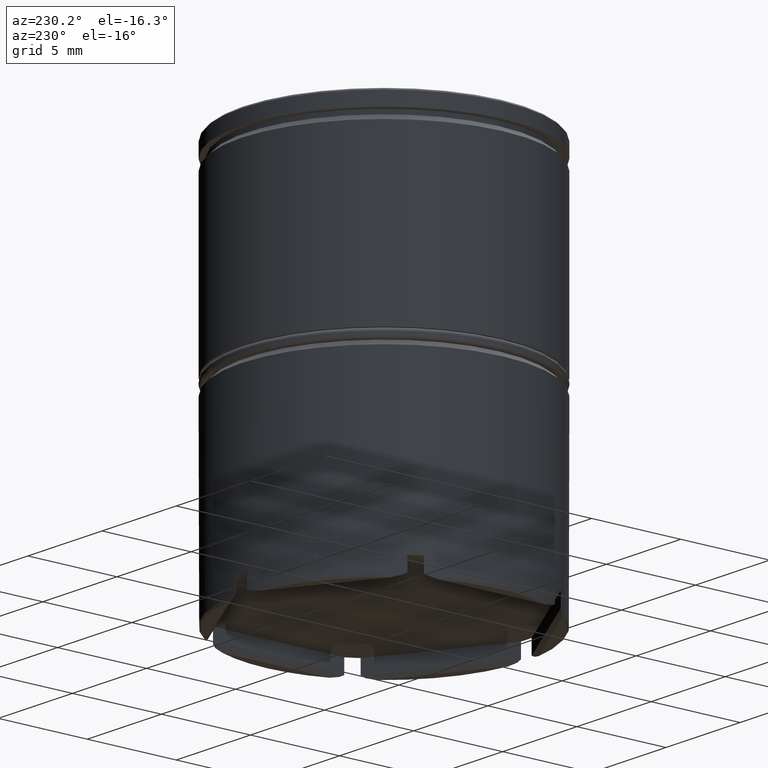
[diagram: clean part render]
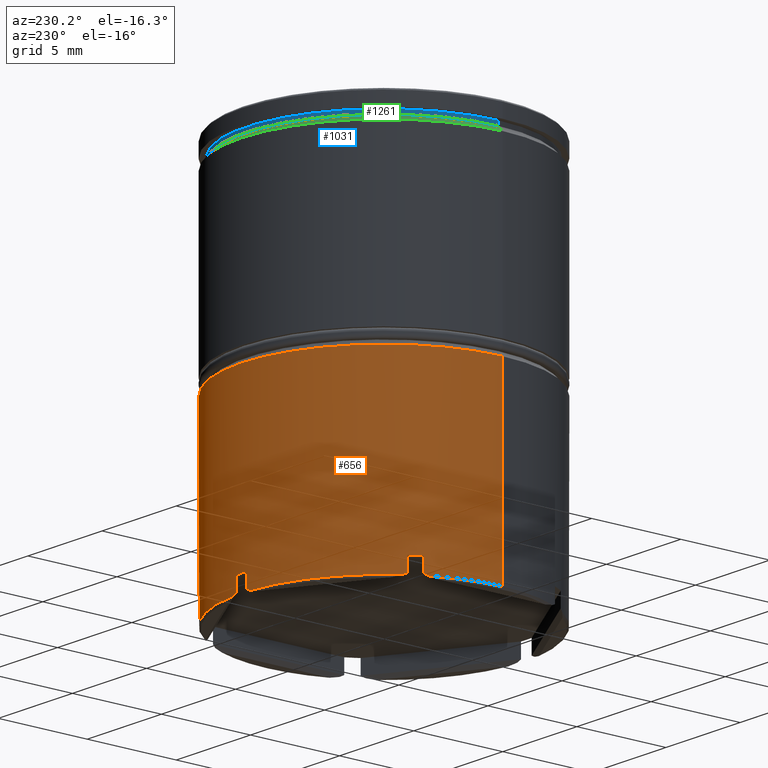
[diagram: same view with three faces highlighted in distinct colors, each labeled with its STEP entity id]
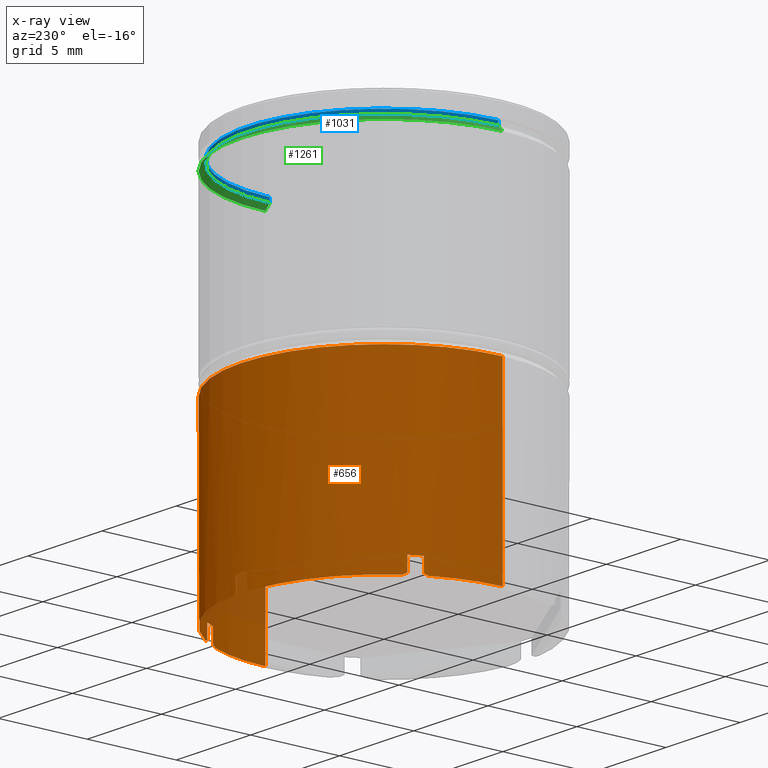
[diagram: x-ray of the same camera — body ghosted, the three highlighted faces saturated]
A machine part, auxiliary view with three faces highlighted in distinct colors.
The next image is the same camera in x-ray (body ghosted, the three faces saturated) — at least one of them is partly hidden behind the body in this view.
Their STEP definitions:

[orange] entity #656 — the highlighted cylindrical surface (partial cylindrical patch) has radius 8 mm, axis along (-0, -0, 1).
#6 = EDGE_LOOP ( 'NONE', ( #1310, #514, #572, #141, #913, #1617, #726, #905, #921, #1592, #1544, #1538, #636, #705, #1390, #1230, #870, #1582, #696, #283, #1303, #1383 ) ) ;
#17 = LINE ( 'NONE', #520, #479 ) ;
#25 = VERTEX_POINT ( 'NONE', #893 ) ;
#27 = CARTESIAN_POINT ( 'NONE',  ( 0.000000000000000000, 0.000000000000000000, -21.90000000000000213 ) ) ;
#32 = CIRCLE ( 'NONE', #140, 8.000000000000000000 ) ;
#43 = DIRECTION ( 'NONE',  ( -1.000000000000000000, 0.000000000000000000, 0.000000000000000000 ) ) ;
#49 = DIRECTION ( 'NONE',  ( 0.000000000000000000, 0.000000000000000000, -1.000000000000000000 ) ) ;
#55 = VECTOR ( 'NONE', #1283, 1000.000000000000000 ) ;
#57 = CARTESIAN_POINT ( 'NONE',  ( -0.5800662258917000935, 7.978942484664226065, -21.90000000000000213 ) ) ;
#73 = VERTEX_POINT ( 'NONE', #1314 ) ;
#75 = CARTESIAN_POINT ( 'NONE',  ( -7.200000000000001066, 3.487119154832536871, -21.90000000000000213 ) ) ;
#106 = LINE ( 'NONE', #1036, #978 ) ;
#107 = VECTOR ( 'NONE', #1601, 1000.000000000000000 ) ;
#114 = VERTEX_POINT ( 'NONE', #184 ) ;
#118 = CARTESIAN_POINT ( 'NONE',  ( -0.3574305019310984322, 7.992011225986190404, 0.000000000000000000 ) ) ;
#120 = DIRECTION ( 'NONE',  ( -1.000000000000000000, 3.552713678800500929E-15, 0.000000000000000000 ) ) ;
#122 = EDGE_CURVE ( 'NONE', #360, #980, #131, .T. ) ;
#131 =( BOUNDED_CURVE ( )  B_SPLINE_CURVE ( 3, ( #1191, #1198, #1569, #57 ),
 .UNSPECIFIED., .F., .T. ) 
 B_SPLINE_CURVE_WITH_KNOTS ( ( 4, 4 ),
 ( 2.662687568714985353, 2.690565841793531199 ),
 .UNSPECIFIED. ) 
 CURVE ( )  GEOMETRIC_REPRESENTATION_ITEM ( )  RATIONAL_B_SPLINE_CURVE ( ( 1.000000000000000000, 0.9999352345395148278, 0.9999352345395148278, 1.000000000000000000 ) ) 
 REPRESENTATION_ITEM ( '' )  );
#140 = AXIS2_PLACEMENT_3D ( 'NONE', #1438, #1208, #1571 ) ;
#141 = ORIENTED_EDGE ( 'NONE', *, *, #574, .F. ) ;
#150 = EDGE_CURVE ( 'NONE', #154, #1038, #936, .T. ) ;
#153 = CARTESIAN_POINT ( 'NONE',  ( 7.100000000000005862, 3.686461718233341678, 0.000000000000000000 ) ) ;
#154 = VERTEX_POINT ( 'NONE', #1444 ) ;
#174 = CARTESIAN_POINT ( 'NONE',  ( -8.000000000000000000, 9.797174393178825657E-16, -21.90000000000000213 ) ) ;
#184 = CARTESIAN_POINT ( 'NONE',  ( 6.619933774108291757, 4.491823329831700740, -21.90000000000000213 ) ) ;
#193 = VECTOR ( 'NONE', #979, 1000.000000000000000 ) ;
#194 = CARTESIAN_POINT ( 'NONE',  ( -6.742569498068905709, 4.305549507752851390, -21.80000000000000782 ) ) ;
#200 = CARTESIAN_POINT ( 'NONE',  ( 0.5059174455343885546, 7.984333074113772355, -21.86759399722602026 ) ) ;
#240 = CIRCLE ( 'NONE', #1165, 8.000000000000000000 ) ;
#251 = CARTESIAN_POINT ( 'NONE',  ( 0.000000000000000000, 0.000000000000000000, -11.54999999999999893 ) ) ;
#283 = ORIENTED_EDGE ( 'NONE', *, *, #1020, .T. ) ;
#290 = CARTESIAN_POINT ( 'NONE',  ( 0.3574305019310944909, 7.992011225986190404, 0.000000000000000000 ) ) ;
#316 = CARTESIAN_POINT ( 'NONE',  ( 6.742569498068909262, 4.305549507752845173, -21.80000000000000071 ) ) ;
#324 = CARTESIAN_POINT ( 'NONE',  ( 6.661676551691631865, 4.430303897107399358, -21.86759399722602382 ) ) ;
#325 = EDGE_CURVE ( 'NONE', #759, #1101, #1000, .T. ) ;
#330 = CARTESIAN_POINT ( 'NONE',  ( -7.100000000000005862, 3.686461718233341678, -21.80000000000000782 ) ) ;
#341 = CIRCLE ( 'NONE', #1188, 8.000000000000000000 ) ;
#343 = CARTESIAN_POINT ( 'NONE',  ( -6.619933774108297975, 4.491823329831691858, -21.90000000000000213 ) ) ;
#350 = LINE ( 'NONE', #1532, #107 ) ;
#359 = DIRECTION ( 'NONE',  ( -1.000000000000000000, 1.154631945610162960E-14, 0.000000000000000000 ) ) ;
#360 = VERTEX_POINT ( 'NONE', #1427 ) ;
#366 = AXIS2_PLACEMENT_3D ( 'NONE', #1017, #888, #1382 ) ;
#367 = CIRCLE ( 'NONE', #1297, 8.000000000000000000 ) ;
#380 = EDGE_CURVE ( 'NONE', #1355, #773, #341, .T. ) ;
#419 = VERTEX_POINT ( 'NONE', #194 ) ;
#443 = AXIS2_PLACEMENT_3D ( 'NONE', #649, #1039, #891 ) ;
#452 = CIRCLE ( 'NONE', #1452, 8.000000000000000000 ) ;
#476 = EDGE_CURVE ( 'NONE', #952, #881, #624, .T. ) ;
#479 = VECTOR ( 'NONE', #1410, 1000.000000000000000 ) ;
#490 = CARTESIAN_POINT ( 'NONE',  ( 0.5800662258917101965, 7.978942484664227841, -21.90000000000000213 ) ) ;
#492 = FACE_OUTER_BOUND ( 'NONE', #6, .T. ) ;
#514 = ORIENTED_EDGE ( 'NONE', *, *, #706, .T. ) ;
#516 = VERTEX_POINT ( 'NONE', #699 ) ;
#518 = CARTESIAN_POINT ( 'NONE',  ( 0.000000000000000000, 0.000000000000000000, -21.90000000000000213 ) ) ;
#520 = CARTESIAN_POINT ( 'NONE',  ( 6.742569498068909262, 4.305549507752845173, 0.000000000000000000 ) ) ;
#523 = EDGE_CURVE ( 'NONE', #1001, #73, #1521, .T. ) ;
#543 = VERTEX_POINT ( 'NONE', #1212 ) ;
#572 = ORIENTED_EDGE ( 'NONE', *, *, #1131, .T. ) ;
#574 = EDGE_CURVE ( 'NONE', #806, #25, #350, .T. ) ;
#586 = CARTESIAN_POINT ( 'NONE',  ( -7.100000000000005862, 3.686461718233341678, 0.000000000000000000 ) ) ;
#591 = CARTESIAN_POINT ( 'NONE',  ( -8.000000000000000000, 9.797174393178825657E-16, -11.54999999999999893 ) ) ;
#602 = CARTESIAN_POINT ( 'NONE',  ( -0.5800662258917000935, 7.978942484664226065, -21.90000000000000213 ) ) ;
#609 = VECTOR ( 'NONE', #49, 1000.000000000000000 ) ;
#618 = DIRECTION ( 'NONE',  ( -0.000000000000000000, -0.000000000000000000, 1.000000000000000000 ) ) ;
#624 =( BOUNDED_CURVE ( )  B_SPLINE_CURVE ( 3, ( #1180, #941, #1442, #1335 ),
 .UNSPECIFIED., .F., .T. ) 
 B_SPLINE_CURVE_WITH_KNOTS ( ( 4, 4 ),
 ( 3.592619465386055477, 3.620497738464601767 ),
 .UNSPECIFIED. ) 
 CURVE ( )  GEOMETRIC_REPRESENTATION_ITEM ( )  RATIONAL_B_SPLINE_CURVE ( ( 1.000000000000000000, 0.9999352345395148278, 0.9999352345395148278, 1.000000000000000000 ) ) 
 REPRESENTATION_ITEM ( '' )  );
#629 = VERTEX_POINT ( 'NONE', #343 ) ;
#636 = ORIENTED_EDGE ( 'NONE', *, *, #1244, .F. ) ;
#649 = CARTESIAN_POINT ( 'NONE',  ( 0.000000000000000000, 0.000000000000000000, -20.99999999999999645 ) ) ;
#656 = ADVANCED_FACE ( 'NONE', ( #492 ), #1609, .T. ) ;
#678 = LINE ( 'NONE', #290, #609 ) ;
#696 = ORIENTED_EDGE ( 'NONE', *, *, #1507, .F. ) ;
#699 = CARTESIAN_POINT ( 'NONE',  ( 6.742569498068909262, 4.305549507752845173, -21.80000000000000071 ) ) ;
#703 = CARTESIAN_POINT ( 'NONE',  ( 7.100000000000005862, 3.686461718233341678, -21.80000000000000782 ) ) ;
#705 = ORIENTED_EDGE ( 'NONE', *, *, #1586, .T. ) ;
#706 = EDGE_CURVE ( 'NONE', #773, #956, #106, .T. ) ;
#719 = CARTESIAN_POINT ( 'NONE',  ( -0.3574305019310927700, 7.992011225986188627, -20.99999999999999645 ) ) ;
#721 = CARTESIAN_POINT ( 'NONE',  ( -6.619933774108297975, 4.491823329831691858, -21.90000000000000213 ) ) ;
#722 = DIRECTION ( 'NONE',  ( 1.000000000000000000, 0.000000000000000000, 0.000000000000000000 ) ) ;
#726 = ORIENTED_EDGE ( 'NONE', *, *, #1164, .F. ) ;
#753 = DIRECTION ( 'NONE',  ( 0.000000000000000000, 0.000000000000000000, -1.000000000000000000 ) ) ;
#759 = VERTEX_POINT ( 'NONE', #799 ) ;
#773 = VERTEX_POINT ( 'NONE', #174 ) ;
#776 = DIRECTION ( 'NONE',  ( -1.000000000000000000, 2.664535259100375697E-15, 0.000000000000000000 ) ) ;
#797 = LINE ( 'NONE', #153, #55 ) ;
#799 = CARTESIAN_POINT ( 'NONE',  ( 7.100000000000005862, 3.686461718233341678, -20.99999999999999645 ) ) ;
#806 = VERTEX_POINT ( 'NONE', #1161 ) ;
#826 = CARTESIAN_POINT ( 'NONE',  ( 0.5800662258917101965, 7.978942484664227841, -21.90000000000000213 ) ) ;
#836 = CARTESIAN_POINT ( 'NONE',  ( 6.619933774108291757, 4.491823329831700740, -21.90000000000000213 ) ) ;
#838 = CARTESIAN_POINT ( 'NONE',  ( 0.000000000000000000, 0.000000000000000000, 0.000000000000000000 ) ) ;
#848 =( BOUNDED_CURVE ( )  B_SPLINE_CURVE ( 3, ( #721, #1599, #1469, #854 ),
 .UNSPECIFIED., .F., .T. ) 
 B_SPLINE_CURVE_WITH_KNOTS ( ( 4, 4 ),
 ( 3.592619465386055033, 3.620497738464601323 ),
 .UNSPECIFIED. ) 
 CURVE ( )  GEOMETRIC_REPRESENTATION_ITEM ( )  RATIONAL_B_SPLINE_CURVE ( ( 1.000000000000000000, 0.9999352345395148278, 0.9999352345395148278, 1.000000000000000000 ) ) 
 REPRESENTATION_ITEM ( '' )  );
#854 = CARTESIAN_POINT ( 'NONE',  ( -6.742569498068905709, 4.305549507752851390, -21.80000000000000782 ) ) ;
#870 = ORIENTED_EDGE ( 'NONE', *, *, #1092, .T. ) ;
#874 = DIRECTION ( 'NONE',  ( -0.000000000000000000, -0.000000000000000000, 1.000000000000000000 ) ) ;
#881 = VERTEX_POINT ( 'NONE', #703 ) ;
#888 = DIRECTION ( 'NONE',  ( -0.000000000000000000, -0.000000000000000000, 1.000000000000000000 ) ) ;
#890 = EDGE_CURVE ( 'NONE', #629, #419, #848, .T. ) ;
#891 = DIRECTION ( 'NONE',  ( -1.000000000000000000, 0.000000000000000000, 0.000000000000000000 ) ) ;
#893 = CARTESIAN_POINT ( 'NONE',  ( 8.000000000000000000, 0.000000000000000000, -11.54999999999999893 ) ) ;
#894 = CARTESIAN_POINT ( 'NONE',  ( -7.100000000000005862, 3.686461718233341678, -20.99999999999999645 ) ) ;
#904 = DIRECTION ( 'NONE',  ( 1.000000000000000000, 0.000000000000000000, 0.000000000000000000 ) ) ;
#905 = ORIENTED_EDGE ( 'NONE', *, *, #325, .T. ) ;
#913 = ORIENTED_EDGE ( 'NONE', *, *, #1213, .T. ) ;
#921 = ORIENTED_EDGE ( 'NONE', *, *, #1275, .F. ) ;
#927 = AXIS2_PLACEMENT_3D ( 'NONE', #251, #753, #904 ) ;
#936 = LINE ( 'NONE', #586, #1525 ) ;
#941 = CARTESIAN_POINT ( 'NONE',  ( 7.167593997226018310, 3.554029177006382767, -21.86759399722601671 ) ) ;
#947 = CARTESIAN_POINT ( 'NONE',  ( 6.702557774036362659, 4.368208601450695561, -21.83425850490418441 ) ) ;
#952 = VERTEX_POINT ( 'NONE', #1210 ) ;
#956 = VERTEX_POINT ( 'NONE', #591 ) ;
#968 =( BOUNDED_CURVE ( )  B_SPLINE_CURVE ( 3, ( #330, #1563, #1199, #1589 ),
 .UNSPECIFIED., .F., .T. ) 
 B_SPLINE_CURVE_WITH_KNOTS ( ( 4, 4 ),
 ( 2.662687568714984465, 2.690565841793530755 ),
 .UNSPECIFIED. ) 
 CURVE ( )  GEOMETRIC_REPRESENTATION_ITEM ( )  RATIONAL_B_SPLINE_CURVE ( ( 1.000000000000000000, 0.9999352345395148278, 0.9999352345395148278, 1.000000000000000000 ) ) 
 REPRESENTATION_ITEM ( '' )  );
#978 = VECTOR ( 'NONE', #1541, 1000.000000000000000 ) ;
#979 = DIRECTION ( 'NONE',  ( 0.000000000000000000, 0.000000000000000000, -1.000000000000000000 ) ) ;
#980 = VERTEX_POINT ( 'NONE', #602 ) ;
#984 = EDGE_CURVE ( 'NONE', #516, #114, #1367, .T. ) ;
#993 = CARTESIAN_POINT ( 'NONE',  ( 0.000000000000000000, 0.000000000000000000, -20.99999999999999645 ) ) ;
#995 = CARTESIAN_POINT ( 'NONE',  ( 0.000000000000000000, 0.000000000000000000, -20.99999999999999645 ) ) ;
#1000 = CIRCLE ( 'NONE', #443, 8.000000000000000000 ) ;
#1001 = VERTEX_POINT ( 'NONE', #490 ) ;
#1012 = CARTESIAN_POINT ( 'NONE',  ( 6.742569498068909262, 4.305549507752845173, -20.99999999999999645 ) ) ;
#1017 = CARTESIAN_POINT ( 'NONE',  ( 0.000000000000000000, 0.000000000000000000, -21.90000000000000213 ) ) ;
#1020 = EDGE_CURVE ( 'NONE', #1228, #1038, #240, .T. ) ;
#1021 = DIRECTION ( 'NONE',  ( -0.000000000000000000, -0.000000000000000000, 1.000000000000000000 ) ) ;
#1036 = CARTESIAN_POINT ( 'NONE',  ( -8.000000000000000000, 9.797174393178825657E-16, 0.000000000000000000 ) ) ;
#1038 = VERTEX_POINT ( 'NONE', #894 ) ;
#1039 = DIRECTION ( 'NONE',  ( -0.000000000000000000, -0.000000000000000000, 1.000000000000000000 ) ) ;
#1044 = DIRECTION ( 'NONE',  ( -0.000000000000000000, -0.000000000000000000, 1.000000000000000000 ) ) ;
#1082 = CIRCLE ( 'NONE', #366, 8.000000000000000000 ) ;
#1083 = DIRECTION ( 'NONE',  ( -0.000000000000000000, -0.000000000000000000, 1.000000000000000000 ) ) ;
#1089 = CARTESIAN_POINT ( 'NONE',  ( 0.4317007308678149080, 7.988689603373718917, -21.83425850490418441 ) ) ;
#1092 = EDGE_CURVE ( 'NONE', #980, #629, #1082, .T. ) ;
#1101 = VERTEX_POINT ( 'NONE', #1012 ) ;
#1131 = EDGE_CURVE ( 'NONE', #956, #25, #1215, .T. ) ;
#1161 = CARTESIAN_POINT ( 'NONE',  ( 8.000000000000000000, 0.000000000000000000, -21.90000000000000213 ) ) ;
#1164 = EDGE_CURVE ( 'NONE', #759, #881, #797, .T. ) ;
#1165 = AXIS2_PLACEMENT_3D ( 'NONE', #995, #1510, #120 ) ;
#1180 = CARTESIAN_POINT ( 'NONE',  ( 7.200000000000000178, 3.487119154832540424, -21.90000000000000213 ) ) ;
#1188 = AXIS2_PLACEMENT_3D ( 'NONE', #518, #1021, #776 ) ;
#1191 = CARTESIAN_POINT ( 'NONE',  ( -0.3574305019310984322, 7.992011225986190404, -21.80000000000000782 ) ) ;
#1198 = CARTESIAN_POINT ( 'NONE',  ( -0.4317007308678146305, 7.988689603373715364, -21.83425850490418441 ) ) ;
#1199 = CARTESIAN_POINT ( 'NONE',  ( -7.167593997226017422, 3.554029177006380991, -21.86759399722601671 ) ) ;
#1204 = CARTESIAN_POINT ( 'NONE',  ( 0.3574305019310944909, 7.992011225986190404, -21.80000000000000071 ) ) ;
#1208 = DIRECTION ( 'NONE',  ( -0.000000000000000000, -0.000000000000000000, 1.000000000000000000 ) ) ;
#1210 = CARTESIAN_POINT ( 'NONE',  ( 7.200000000000000178, 3.487119154832540424, -21.90000000000000213 ) ) ;
#1212 = CARTESIAN_POINT ( 'NONE',  ( 0.3574305019310944909, 7.992011225986190404, -20.99999999999999645 ) ) ;
#1213 = EDGE_CURVE ( 'NONE', #806, #952, #452, .T. ) ;
#1215 = CIRCLE ( 'NONE', #927, 8.000000000000000000 ) ;
#1228 = VERTEX_POINT ( 'NONE', #1539 ) ;
#1230 = ORIENTED_EDGE ( 'NONE', *, *, #122, .T. ) ;
#1233 = LINE ( 'NONE', #1629, #193 ) ;
#1240 = LINE ( 'NONE', #118, #1477 ) ;
#1244 = EDGE_CURVE ( 'NONE', #543, #73, #678, .T. ) ;
#1275 = EDGE_CURVE ( 'NONE', #516, #1101, #17, .T. ) ;
#1283 = DIRECTION ( 'NONE',  ( 0.000000000000000000, 0.000000000000000000, -1.000000000000000000 ) ) ;
#1297 = AXIS2_PLACEMENT_3D ( 'NONE', #993, #1491, #359 ) ;
#1303 = ORIENTED_EDGE ( 'NONE', *, *, #150, .F. ) ;
#1310 = ORIENTED_EDGE ( 'NONE', *, *, #380, .T. ) ;
#1314 = CARTESIAN_POINT ( 'NONE',  ( 0.3574305019310944909, 7.992011225986190404, -21.80000000000000071 ) ) ;
#1333 = EDGE_CURVE ( 'NONE', #154, #1355, #968, .T. ) ;
#1335 = CARTESIAN_POINT ( 'NONE',  ( 7.100000000000005862, 3.686461718233341678, -21.80000000000000782 ) ) ;
#1355 = VERTEX_POINT ( 'NONE', #75 ) ;
#1358 = VERTEX_POINT ( 'NONE', #719 ) ;
#1367 =( BOUNDED_CURVE ( )  B_SPLINE_CURVE ( 3, ( #316, #947, #324, #836 ),
 .UNSPECIFIED., .F., .T. ) 
 B_SPLINE_CURVE_WITH_KNOTS ( ( 4, 4 ),
 ( 2.662687568714984465, 2.690565841793532975 ),
 .UNSPECIFIED. ) 
 CURVE ( )  GEOMETRIC_REPRESENTATION_ITEM ( )  RATIONAL_B_SPLINE_CURVE ( ( 1.000000000000000000, 0.9999352345395148278, 0.9999352345395148278, 1.000000000000000000 ) ) 
 REPRESENTATION_ITEM ( '' )  );
#1378 = EDGE_CURVE ( 'NONE', #114, #1001, #32, .T. ) ;
#1382 = DIRECTION ( 'NONE',  ( -1.000000000000000000, -1.776356839400250465E-15, 0.000000000000000000 ) ) ;
#1383 = ORIENTED_EDGE ( 'NONE', *, *, #1333, .T. ) ;
#1390 = ORIENTED_EDGE ( 'NONE', *, *, #1482, .F. ) ;
#1410 = DIRECTION ( 'NONE',  ( -0.000000000000000000, -0.000000000000000000, 1.000000000000000000 ) ) ;
#1427 = CARTESIAN_POINT ( 'NONE',  ( -0.3574305019310984322, 7.992011225986190404, -21.80000000000000782 ) ) ;
#1438 = CARTESIAN_POINT ( 'NONE',  ( 0.000000000000000000, 0.000000000000000000, -21.90000000000000213 ) ) ;
#1442 = CARTESIAN_POINT ( 'NONE',  ( 7.134258504904175346, 3.620481001923024689, -21.83425850490418085 ) ) ;
#1444 = CARTESIAN_POINT ( 'NONE',  ( -7.100000000000005862, 3.686461718233341678, -21.80000000000000782 ) ) ;
#1452 = AXIS2_PLACEMENT_3D ( 'NONE', #27, #1044, #43 ) ;
#1469 = CARTESIAN_POINT ( 'NONE',  ( -6.702557774036359994, 4.368208601450696449, -21.83425850490418441 ) ) ;
#1477 = VECTOR ( 'NONE', #618, 1000.000000000000000 ) ;
#1482 = EDGE_CURVE ( 'NONE', #360, #1358, #1240, .T. ) ;
#1491 = DIRECTION ( 'NONE',  ( -0.000000000000000000, -0.000000000000000000, 1.000000000000000000 ) ) ;
#1507 = EDGE_CURVE ( 'NONE', #1228, #419, #1233, .T. ) ;
#1510 = DIRECTION ( 'NONE',  ( -0.000000000000000000, -0.000000000000000000, 1.000000000000000000 ) ) ;
#1521 =( BOUNDED_CURVE ( )  B_SPLINE_CURVE ( 3, ( #826, #200, #1089, #1204 ),
 .UNSPECIFIED., .F., .T. ) 
 B_SPLINE_CURVE_WITH_KNOTS ( ( 4, 4 ),
 ( 3.592619465386054145, 3.620497738464602211 ),
 .UNSPECIFIED. ) 
 CURVE ( )  GEOMETRIC_REPRESENTATION_ITEM ( )  RATIONAL_B_SPLINE_CURVE ( ( 1.000000000000000000, 0.9999352345395148278, 0.9999352345395148278, 1.000000000000000000 ) ) 
 REPRESENTATION_ITEM ( '' )  );
#1525 = VECTOR ( 'NONE', #1083, 1000.000000000000000 ) ;
#1532 = CARTESIAN_POINT ( 'NONE',  ( 8.000000000000000000, 0.000000000000000000, 0.000000000000000000 ) ) ;
#1538 = ORIENTED_EDGE ( 'NONE', *, *, #523, .T. ) ;
#1539 = CARTESIAN_POINT ( 'NONE',  ( -6.742569498068907485, 4.305549507752846061, -20.99999999999999645 ) ) ;
#1541 = DIRECTION ( 'NONE',  ( -0.000000000000000000, -0.000000000000000000, 1.000000000000000000 ) ) ;
#1544 = ORIENTED_EDGE ( 'NONE', *, *, #1378, .T. ) ;
#1563 = CARTESIAN_POINT ( 'NONE',  ( -7.134258504904176235, 3.620481001923023801, -21.83425850490418085 ) ) ;
#1569 = CARTESIAN_POINT ( 'NONE',  ( -0.5059174455343817822, 7.984333074113770579, -21.86759399722602026 ) ) ;
#1571 = DIRECTION ( 'NONE',  ( -1.000000000000000000, -1.776356839400250465E-15, 0.000000000000000000 ) ) ;
#1582 = ORIENTED_EDGE ( 'NONE', *, *, #890, .T. ) ;
#1586 = EDGE_CURVE ( 'NONE', #543, #1358, #367, .T. ) ;
#1589 = CARTESIAN_POINT ( 'NONE',  ( -7.200000000000001066, 3.487119154832536871, -21.90000000000000213 ) ) ;
#1592 = ORIENTED_EDGE ( 'NONE', *, *, #984, .T. ) ;
#1599 = CARTESIAN_POINT ( 'NONE',  ( -6.661676551691632753, 4.430303897107394029, -21.86759399722601671 ) ) ;
#1601 = DIRECTION ( 'NONE',  ( -0.000000000000000000, -0.000000000000000000, 1.000000000000000000 ) ) ;
#1609 = CYLINDRICAL_SURFACE ( 'NONE', #1635, 8.000000000000000000 ) ;
#1617 = ORIENTED_EDGE ( 'NONE', *, *, #476, .T. ) ;
#1629 = CARTESIAN_POINT ( 'NONE',  ( -6.742569498068905709, 4.305549507752851390, 0.000000000000000000 ) ) ;
#1635 = AXIS2_PLACEMENT_3D ( 'NONE', #838, #874, #722 ) ;

[blue] entity #1031 — the highlighted cylindrical surface (partial cylindrical patch) has radius 7.7 mm, axis along (-0, -0, 1).
#4 = CIRCLE ( 'NONE', #795, 7.700000000000000178 ) ;
#46 = EDGE_LOOP ( 'NONE', ( #1284, #497, #751, #69 ) ) ;
#69 = ORIENTED_EDGE ( 'NONE', *, *, #1403, .F. ) ;
#109 = CARTESIAN_POINT ( 'NONE',  ( 7.700000000000000178, 0.000000000000000000, -0.8749999999999998890 ) ) ;
#160 = VERTEX_POINT ( 'NONE', #567 ) ;
#166 = VECTOR ( 'NONE', #196, 1000.000000000000000 ) ;
#180 = VERTEX_POINT ( 'NONE', #109 ) ;
#196 = DIRECTION ( 'NONE',  ( -0.000000000000000000, -0.000000000000000000, 1.000000000000000000 ) ) ;
#268 = CYLINDRICAL_SURFACE ( 'NONE', #662, 7.700000000000000178 ) ;
#314 = DIRECTION ( 'NONE',  ( -0.000000000000000000, -0.000000000000000000, 1.000000000000000000 ) ) ;
#344 = CIRCLE ( 'NONE', #1533, 7.700000000000000178 ) ;
#378 = DIRECTION ( 'NONE',  ( 1.000000000000000000, 0.000000000000000000, 0.000000000000000000 ) ) ;
#400 = DIRECTION ( 'NONE',  ( -0.000000000000000000, -0.000000000000000000, 1.000000000000000000 ) ) ;
#435 = LINE ( 'NONE', #688, #166 ) ;
#497 = ORIENTED_EDGE ( 'NONE', *, *, #1327, .T. ) ;
#567 = CARTESIAN_POINT ( 'NONE',  ( -7.700000000000000178, 9.429780353434619030E-16, -1.125000000000000222 ) ) ;
#589 = CARTESIAN_POINT ( 'NONE',  ( -7.700000000000000178, 9.429780353434619030E-16, 0.000000000000000000 ) ) ;
#594 = LINE ( 'NONE', #589, #1007 ) ;
#601 = VERTEX_POINT ( 'NONE', #997 ) ;
#662 = AXIS2_PLACEMENT_3D ( 'NONE', #1135, #1259, #378 ) ;
#673 = CARTESIAN_POINT ( 'NONE',  ( 0.000000000000000000, 0.000000000000000000, -1.125000000000000222 ) ) ;
#688 = CARTESIAN_POINT ( 'NONE',  ( 7.700000000000000178, 0.000000000000000000, 0.000000000000000000 ) ) ;
#751 = ORIENTED_EDGE ( 'NONE', *, *, #1392, .F. ) ;
#780 = DIRECTION ( 'NONE',  ( 1.000000000000000000, 0.000000000000000000, 0.000000000000000000 ) ) ;
#795 = AXIS2_PLACEMENT_3D ( 'NONE', #673, #400, #780 ) ;
#997 = CARTESIAN_POINT ( 'NONE',  ( -7.700000000000000178, 9.429780353434619030E-16, -0.8749999999999998890 ) ) ;
#1007 = VECTOR ( 'NONE', #314, 1000.000000000000000 ) ;
#1031 = ADVANCED_FACE ( 'NONE', ( #1146 ), #268, .T. ) ;
#1093 = DIRECTION ( 'NONE',  ( 1.000000000000000000, 0.000000000000000000, 0.000000000000000000 ) ) ;
#1135 = CARTESIAN_POINT ( 'NONE',  ( 0.000000000000000000, 0.000000000000000000, 0.000000000000000000 ) ) ;
#1146 = FACE_OUTER_BOUND ( 'NONE', #46, .T. ) ;
#1209 = VERTEX_POINT ( 'NONE', #1431 ) ;
#1218 = CARTESIAN_POINT ( 'NONE',  ( 0.000000000000000000, 0.000000000000000000, -0.8749999999999998890 ) ) ;
#1254 = EDGE_CURVE ( 'NONE', #1209, #160, #4, .T. ) ;
#1259 = DIRECTION ( 'NONE',  ( -0.000000000000000000, -0.000000000000000000, 1.000000000000000000 ) ) ;
#1284 = ORIENTED_EDGE ( 'NONE', *, *, #1254, .T. ) ;
#1324 = DIRECTION ( 'NONE',  ( -0.000000000000000000, -0.000000000000000000, 1.000000000000000000 ) ) ;
#1327 = EDGE_CURVE ( 'NONE', #160, #601, #594, .T. ) ;
#1392 = EDGE_CURVE ( 'NONE', #180, #601, #344, .T. ) ;
#1403 = EDGE_CURVE ( 'NONE', #1209, #180, #435, .T. ) ;
#1431 = CARTESIAN_POINT ( 'NONE',  ( 7.700000000000000178, 0.000000000000000000, -1.125000000000000222 ) ) ;
#1533 = AXIS2_PLACEMENT_3D ( 'NONE', #1218, #1324, #1093 ) ;

[green] entity #1261 — the highlighted conical surface has half-angle 45 deg.
#4 = CIRCLE ( 'NONE', #795, 7.700000000000000178 ) ;
#82 = AXIS2_PLACEMENT_3D ( 'NONE', #911, #553, #1060 ) ;
#86 = CARTESIAN_POINT ( 'NONE',  ( 8.000000000000000000, 0.000000000000000000, -1.425000000000003597 ) ) ;
#135 = EDGE_CURVE ( 'NONE', #1209, #1375, #718, .T. ) ;
#160 = VERTEX_POINT ( 'NONE', #567 ) ;
#165 = CARTESIAN_POINT ( 'NONE',  ( -7.699999999999994849, 0.000000000000000000, -1.125000000000000222 ) ) ;
#215 = CIRCLE ( 'NONE', #1322, 8.000000000000000000 ) ;
#254 = CARTESIAN_POINT ( 'NONE',  ( -8.000000000000000000, 9.797174393178825657E-16, -1.425000000000003597 ) ) ;
#256 = ORIENTED_EDGE ( 'NONE', *, *, #135, .T. ) ;
#279 = VERTEX_POINT ( 'NONE', #254 ) ;
#400 = DIRECTION ( 'NONE',  ( -0.000000000000000000, -0.000000000000000000, 1.000000000000000000 ) ) ;
#409 = DIRECTION ( 'NONE',  ( 0.000000000000000000, 0.000000000000000000, -1.000000000000000000 ) ) ;
#454 = CARTESIAN_POINT ( 'NONE',  ( 7.699999999999994849, 9.429780353434613113E-16, -1.125000000000000222 ) ) ;
#540 = DIRECTION ( 'NONE',  ( 1.000000000000000000, 0.000000000000000000, 0.000000000000000000 ) ) ;
#553 = DIRECTION ( 'NONE',  ( 0.000000000000000000, 0.000000000000000000, -1.000000000000000000 ) ) ;
#567 = CARTESIAN_POINT ( 'NONE',  ( -7.700000000000000178, 9.429780353434619030E-16, -1.125000000000000222 ) ) ;
#668 = DIRECTION ( 'NONE',  ( -0.7071067811865495711, 0.000000000000000000, -0.7071067811865454633 ) ) ;
#673 = CARTESIAN_POINT ( 'NONE',  ( 0.000000000000000000, 0.000000000000000000, -1.125000000000000222 ) ) ;
#718 = LINE ( 'NONE', #454, #764 ) ;
#734 = ORIENTED_EDGE ( 'NONE', *, *, #830, .F. ) ;
#764 = VECTOR ( 'NONE', #1207, 1000.000000000000000 ) ;
#780 = DIRECTION ( 'NONE',  ( 1.000000000000000000, 0.000000000000000000, 0.000000000000000000 ) ) ;
#795 = AXIS2_PLACEMENT_3D ( 'NONE', #673, #400, #780 ) ;
#809 = EDGE_CURVE ( 'NONE', #279, #1375, #215, .T. ) ;
#830 = EDGE_CURVE ( 'NONE', #160, #279, #1293, .T. ) ;
#911 = CARTESIAN_POINT ( 'NONE',  ( 0.000000000000000000, 0.000000000000000000, -1.125000000000000222 ) ) ;
#982 = VECTOR ( 'NONE', #668, 1000.000000000000000 ) ;
#1053 = CARTESIAN_POINT ( 'NONE',  ( 0.000000000000000000, 0.000000000000000000, -1.425000000000003597 ) ) ;
#1060 = DIRECTION ( 'NONE',  ( -1.000000000000000000, 0.000000000000000000, 0.000000000000000000 ) ) ;
#1176 = FACE_OUTER_BOUND ( 'NONE', #1257, .T. ) ;
#1207 = DIRECTION ( 'NONE',  ( 0.7071067811865495711, 8.659560562354957510E-17, -0.7071067811865454633 ) ) ;
#1209 = VERTEX_POINT ( 'NONE', #1431 ) ;
#1254 = EDGE_CURVE ( 'NONE', #1209, #160, #4, .T. ) ;
#1257 = EDGE_LOOP ( 'NONE', ( #1417, #256, #1540, #734 ) ) ;
#1261 = ADVANCED_FACE ( 'NONE', ( #1176 ), #1323, .T. ) ;
#1293 = LINE ( 'NONE', #165, #982 ) ;
#1322 = AXIS2_PLACEMENT_3D ( 'NONE', #1053, #409, #540 ) ;
#1323 = CONICAL_SURFACE ( 'NONE', #82, 7.699999999999994849, 0.7853981633974511656 ) ;
#1375 = VERTEX_POINT ( 'NONE', #86 ) ;
#1417 = ORIENTED_EDGE ( 'NONE', *, *, #1254, .F. ) ;
#1431 = CARTESIAN_POINT ( 'NONE',  ( 7.700000000000000178, 0.000000000000000000, -1.125000000000000222 ) ) ;
#1540 = ORIENTED_EDGE ( 'NONE', *, *, #809, .F. ) ;